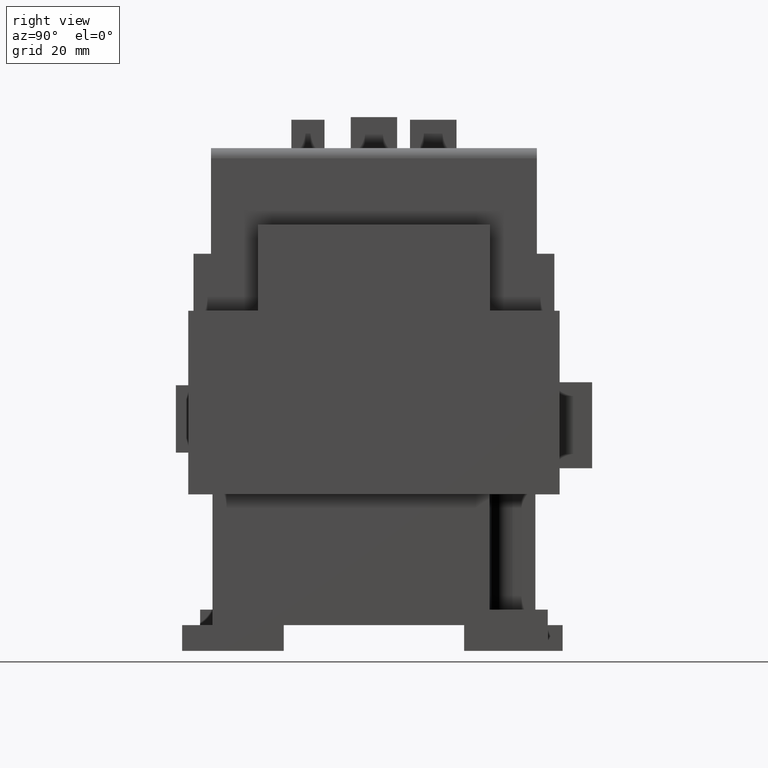
[diagram: clean part render]
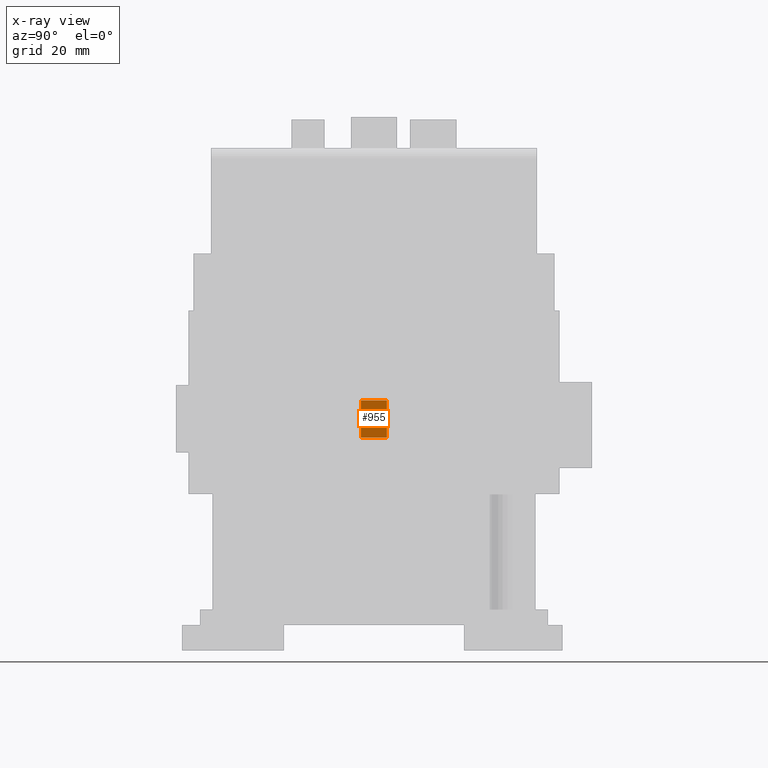
[diagram: x-ray — body ghosted, one internal face saturated and labeled with its STEP entity id]
A machine part, right view, then the same camera in x-ray: the body is ghosted and one INTERNAL B-rep face — a face not visible from any outside direction — is saturated and labeled: STEP entity #955.
In plain terms, the highlighted planar face has unit normal (1, 0, 0).
Its self-contained STEP definition (entity closure, byte-faithful):
#955=ADVANCED_FACE('',(#1832),#1412,.F.);
#1412=PLANE('',#9966);
#1832=FACE_OUTER_BOUND('',#2433,.F.);
#2433=EDGE_LOOP('',(#4931,#4932,#4933,#4934));
#4931=ORIENTED_EDGE('',*,*,#7082,.T.);
#4932=ORIENTED_EDGE('',*,*,#7083,.T.);
#4933=ORIENTED_EDGE('',*,*,#7084,.T.);
#4934=ORIENTED_EDGE('',*,*,#7085,.T.);
#5823=VERTEX_POINT('',#14959);
#5824=VERTEX_POINT('',#14960);
#5825=VERTEX_POINT('',#14962);
#5826=VERTEX_POINT('',#14964);
#7082=EDGE_CURVE('',#5823,#5824,#8193,.T.);
#7083=EDGE_CURVE('',#5824,#5825,#8194,.T.);
#7084=EDGE_CURVE('',#5825,#5826,#8195,.T.);
#7085=EDGE_CURVE('',#5826,#5823,#8196,.T.);
#8193=LINE('',#14958,#9304);
#8194=LINE('',#14961,#9305);
#8195=LINE('',#14963,#9306);
#8196=LINE('',#14965,#9307);
#9304=VECTOR('',#12341,1.);
#9305=VECTOR('',#12342,1.);
#9306=VECTOR('',#12343,1.);
#9307=VECTOR('',#12344,1.);
#9966=AXIS2_PLACEMENT_3D('',#14966,#12345,#12346);
#12341=DIRECTION('',(0.,5.9818050895752E-017,1.));
#12342=DIRECTION('',(0.,-1.,0.));
#12343=DIRECTION('',(0.,-1.4954512723938E-016,-1.));
#12344=DIRECTION('',(0.,1.,0.));
#12345=DIRECTION('',(1.,0.,0.));
#12346=DIRECTION('',(0.,0.,-1.));
#14958=CARTESIAN_POINT('',(18.2,2.50000000000001,36.3));
#14959=CARTESIAN_POINT('',(18.2,2.50000000000001,36.3));
#14960=CARTESIAN_POINT('',(18.2,2.50000000000173,43.5499999999999));
#14961=CARTESIAN_POINT('',(18.2,3.5527136788005E-015,43.55));
#14962=CARTESIAN_POINT('',(18.2,-2.49999999999999,43.55));
#14963=CARTESIAN_POINT('',(18.2,-2.49999999999999,50.8));
#14964=CARTESIAN_POINT('',(18.2,-2.49999999999999,36.3));
#14965=CARTESIAN_POINT('',(18.2,-2.49999999999999,36.3));
#14966=CARTESIAN_POINT('',(18.2,-2.49999999999999,36.3));